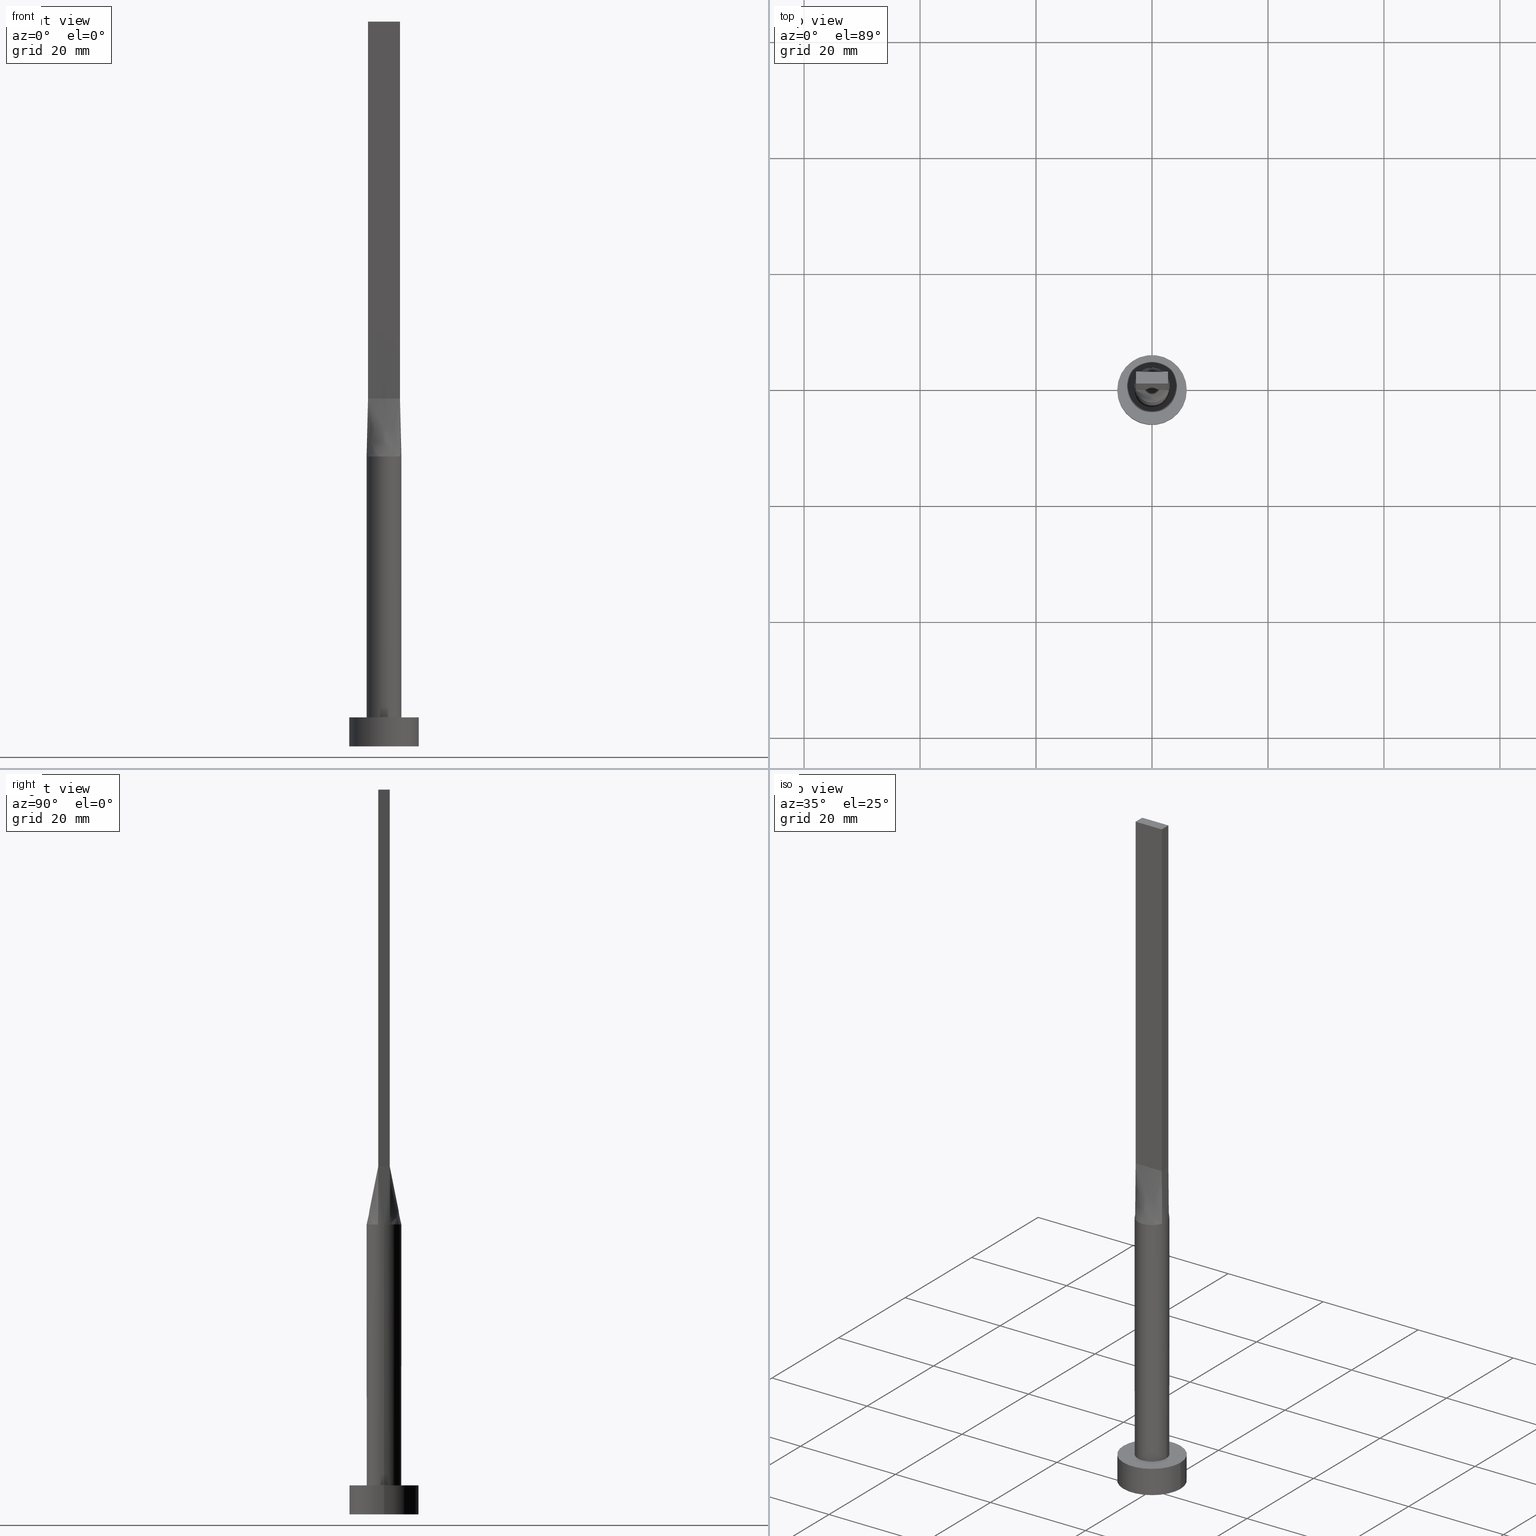
[diagram: canonical four-view strip — front | top / right | iso, engineering-drawing reading convention]
A machine part, canonical four-view strip (front | top / right | iso — engineering-drawing reading convention). The complete STEP part file that produces these views, byte-faithful:
ISO-10303-21;
HEADER;
FILE_DESCRIPTION (( 'STEP AP203' ),
    '1' );
FILE_NAME ('5a83.STEP',
    '2023-02-13T10:27:42',
    ( '' ),
    ( '' ),
    'SwSTEP 2.0',
    'SolidWorks 2019',
    '' );
FILE_SCHEMA (( 'CONFIG_CONTROL_DESIGN' ));
ENDSEC;

DATA;
#1 = ORIENTED_EDGE ( 'NONE', *, *, #524, .T. ) ;
#2 = PERSON_AND_ORGANIZATION ( #189, #142 ) ;
#3 = EDGE_CURVE ( 'NONE', #84, #350, #478, .T. ) ;
#4 = PLANE ( 'NONE',  #156 ) ;
#5 = DIRECTION ( 'NONE',  ( 1.000000000000000000, 0.000000000000000000, 0.000000000000000000 ) ) ;
#6 = CARTESIAN_POINT ( 'NONE',  ( 2.750000000000000000, -1.000000000000000000, 60.00000000000000000 ) ) ;
#7 = ORIENTED_EDGE ( 'NONE', *, *, #319, .F. ) ;
#8 = EDGE_LOOP ( 'NONE', ( #441, #580, #504, #439 ) ) ;
#9 = B_SPLINE_CURVE_WITH_KNOTS ( 'NONE', 3,
 ( #287, #246, #205, #36, #480, #471, #113, #155, #476, #28, #434, #428, #384, #323, #565, #73, #31, #200 ),
 .UNSPECIFIED., .F., .F.,
 ( 4, 2, 2, 2, 2, 2, 2, 2, 4 ),
 ( 0.000000000000000000, 0.1249999999999998890, 0.2499999999999997780, 0.3749999999999997780, 0.4999999999999997780, 0.6249999999999997780, 0.7499999999999997780, 0.8749999999999998890, 1.000000000000000000 ),
 .UNSPECIFIED. ) ;
#10 = VERTEX_POINT ( 'NONE', #162 ) ;
#11 = FACE_OUTER_BOUND ( 'NONE', #435, .T. ) ;
#12 = FACE_OUTER_BOUND ( 'NONE', #35, .T. ) ;
#13 = CARTESIAN_POINT ( 'NONE',  ( -0.4583333333333330373, -0.9999999999999995559, 60.00000000000000000 ) ) ;
#14 = CARTESIAN_POINT ( 'NONE',  ( 2.936168591633194769, -0.7040613060484341990, 49.99999999999999289 ) ) ;
#15 = LINE ( 'NONE', #190, #174 ) ;
#16 = CYLINDRICAL_SURFACE ( 'NONE', #294, 3.000000000000000444 ) ;
#17 = CARTESIAN_POINT ( 'NONE',  ( -2.520833333333332593, 1.000000000000000000, 60.00000000000000000 ) ) ;
#18 = CYLINDRICAL_SURFACE ( 'NONE', #100, 6.000000000000000888 ) ;
#19 = SECURITY_CLASSIFICATION ( '', '', #53 ) ;
#20 = FACE_OUTER_BOUND ( 'NONE', #543, .T. ) ;
#21 = CARTESIAN_POINT ( 'NONE',  ( -2.625980160873452540, -1.476334031700885507, 49.99999999999998579 ) ) ;
#22 = DIRECTION ( 'NONE',  ( -2.168404344971008868E-16, 1.000000000000000000, -0.000000000000000000 ) ) ;
#23 = EDGE_CURVE ( 'NONE', #433, #43, #74, .T. ) ;
#24 = CARTESIAN_POINT ( 'NONE',  ( 2.749999999999999556, 1.000000000000000000, 125.0000000000000000 ) ) ;
#25 = DIRECTION ( 'NONE',  ( 1.000000000000000000, 0.000000000000000000, 0.000000000000000000 ) ) ;
#26 = ADVANCED_BREP_SHAPE_REPRESENTATION ( '5a83', ( #447, #519 ), #304 ) ;
#27 = CC_DESIGN_DATE_AND_TIME_ASSIGNMENT ( #535, #489, ( #576 ) ) ;
#28 = CARTESIAN_POINT ( 'NONE',  ( -0.3502136323054376721, 2.999999999999999112, 50.00000000000001421 ) ) ;
#29 = CIRCLE ( 'NONE', #65, 6.000000000000000888 ) ;
#30 = DIRECTION ( 'NONE',  ( 1.000000000000000000, 0.000000000000000000, 0.000000000000000000 ) ) ;
#31 = CARTESIAN_POINT ( 'NONE',  ( -2.739088299662392423, 1.246032108968142316, 49.99999999999998579 ) ) ;
#32 = DIRECTION ( 'NONE',  ( 0.000000000000000000, 0.000000000000000000, 1.000000000000000000 ) ) ;
#33 = CARTESIAN_POINT ( 'NONE',  ( -2.749999999999999556, 1.000000000000000000, 60.00000000000000000 ) ) ;
#34 = EDGE_CURVE ( 'NONE', #10, #479, #526, .T. ) ;
#35 = EDGE_LOOP ( 'NONE', ( #178, #382, #395, #492, #220, #570 ) ) ;
#36 = CARTESIAN_POINT ( 'NONE',  ( 2.314486317179579977, 1.928337902455807384, 50.00000000000001421 ) ) ;
#37 = AXIS2_PLACEMENT_3D ( 'NONE', #577, #239, #70 ) ;
#38 = ORIENTED_EDGE ( 'NONE', *, *, #432, .F. ) ;
#39 = APPROVAL_STATUS ( 'not_yet_approved' ) ;
#40 = CARTESIAN_POINT ( 'NONE',  ( -0.9166666666666664076, -0.9999999999999995559, 60.00000000000000000 ) ) ;
#41 = ORIENTED_EDGE ( 'NONE', *, *, #390, .T. ) ;
#42 = CARTESIAN_POINT ( 'NONE',  ( 2.819380270465311700, -1.025229189260112417, 49.99999999999999289 ) ) ;
#43 = VERTEX_POINT ( 'NONE', #288 ) ;
#44 = LOCAL_TIME ( 11, 27, 42.00000000000000000, #77 ) ;
#45 = APPROVAL_DATE_TIME ( #445, #217 ) ;
#46 = CARTESIAN_POINT ( 'NONE',  ( -3.000000000000000444, 0.000000000000000000, 5.000000000000000000 ) ) ;
#47 = VERTEX_POINT ( 'NONE', #247 ) ;
#48 = ORIENTED_EDGE ( 'NONE', *, *, #468, .F. ) ;
#49 = ORIENTED_EDGE ( 'NONE', *, *, #90, .F. ) ;
#50 = EDGE_CURVE ( 'NONE', #436, #536, #429, .T. ) ;
#51 = ORIENTED_EDGE ( 'NONE', *, *, #400, .F. ) ;
#52 = CARTESIAN_POINT ( 'NONE',  ( 1.833333333333335258, 1.000000000000000000, 60.00000000000000000 ) ) ;
#53 = SECURITY_CLASSIFICATION_LEVEL ( 'unclassified' ) ;
#54 = VECTOR ( 'NONE', #336, 1000.000000000000000 ) ;
#55 = FACE_OUTER_BOUND ( 'NONE', #404, .T. ) ;
#56 = CARTESIAN_POINT ( 'NONE',  ( -0.2291666666666662966, -0.9999999999999995559, 60.00000000000000000 ) ) ;
#57 = DIRECTION ( 'NONE',  ( -0.006937837988376364777, -0.002522850177591326286, -0.9999727504442450510 ) ) ;
#58 = CARTESIAN_POINT ( 'NONE',  ( -1.145833333333329929, 1.000000000000000000, 60.00000000000000000 ) ) ;
#59 = PRODUCT_DEFINITION_SHAPE ( 'NONE', 'NONE',  #576 ) ;
#60 = DIRECTION ( 'NONE',  ( -0.006937837988376364777, 0.002522850177591326286, 0.9999727504442450510 ) ) ;
#61 = CARTESIAN_POINT ( 'NONE',  ( -2.819380270465311700, -1.025229189260111973, 49.99999999999999289 ) ) ;
#62 = DIRECTION ( 'NONE',  ( -1.000000000000000000, 0.000000000000000000, 0.000000000000000000 ) ) ;
#63 = ORIENTED_EDGE ( 'NONE', *, *, #263, .F. ) ;
#64 = CARTESIAN_POINT ( 'NONE',  ( 2.819380270465311700, 1.025229189260112639, 49.99999999999999289 ) ) ;
#65 = AXIS2_PLACEMENT_3D ( 'NONE', #370, #153, #394 ) ;
#66 = CARTESIAN_POINT ( 'NONE',  ( 2.749999999999999556, 1.000000000000000000, 125.0000000000000000 ) ) ;
#67 = LINE ( 'NONE', #238, #179 ) ;
#68 = EDGE_CURVE ( 'NONE', #495, #306, #481, .T. ) ;
#69 = CARTESIAN_POINT ( 'NONE',  ( -2.784690135232655628, 1.012614594630056430, 54.99999999999999289 ) ) ;
#70 = DIRECTION ( 'NONE',  ( 1.000000000000000000, -1.776356839400250465E-15, 0.000000000000000000 ) ) ;
#71 = AXIS2_PLACEMENT_3D ( 'NONE', #491, #499, #553 ) ;
#72 = VERTEX_POINT ( 'NONE', #552 ) ;
#73 = CARTESIAN_POINT ( 'NONE',  ( -2.625980160873452096, 1.476334031700886396, 50.00000000000000711 ) ) ;
#74 = LINE ( 'NONE', #379, #568 ) ;
#75 = DIRECTION ( 'NONE',  ( 1.000000000000000000, 0.000000000000000000, 0.000000000000000000 ) ) ;
#76 = ORIENTED_EDGE ( 'NONE', *, *, #531, .F. ) ;
#77 = COORDINATED_UNIVERSAL_TIME_OFFSET ( 1, 0, .AHEAD. ) ;
#78 = VECTOR ( 'NONE', #322, 1000.000000000000000 ) ;
#79 = VECTOR ( 'NONE', #359, 1000.000000000000000 ) ;
#80 = ADVANCED_FACE ( 'NONE', ( #226 ), #308, .F. ) ;
#81 = PERSON_AND_ORGANIZATION_ROLE ( 'creator' ) ;
#82 = CARTESIAN_POINT ( 'NONE',  ( -3.000000000000000444, -1.370010780910362699E-16, 49.99999999999998579 ) ) ;
#83 = ORIENTED_EDGE ( 'NONE', *, *, #353, .F. ) ;
#84 = VERTEX_POINT ( 'NONE', #510 ) ;
#85 = CARTESIAN_POINT ( 'NONE',  ( -2.750000000000000000, -0.3333333333333324822, 59.99999999999999289 ) ) ;
#86 = DIRECTION ( 'NONE',  ( 1.000000000000000000, 0.000000000000000000, -0.000000000000000000 ) ) ;
#87 = EDGE_LOOP ( 'NONE', ( #413, #537, #210, #158 ) ) ;
#88 = AXIS2_PLACEMENT_3D ( 'NONE', #424, #159, #25 ) ;
#89 = CARTESIAN_POINT ( 'NONE',  ( -2.750000000000000000, -0.9999999999999993339, 125.0000000000000000 ) ) ;
#90 = EDGE_CURVE ( 'NONE', #386, #479, #271, .T. ) ;
#91 = FACE_OUTER_BOUND ( 'NONE', #127, .T. ) ;
#92 = ORIENTED_EDGE ( 'NONE', *, *, #23, .T. ) ;
#93 = VECTOR ( 'NONE', #116, 1000.000000000000227 ) ;
#94 = CARTESIAN_POINT ( 'NONE',  ( -2.291666666666666519, -0.9999999999999995559, 60.00000000000000000 ) ) ;
#95 = CARTESIAN_POINT ( 'NONE',  ( -1.338960936578149408, 2.706038443291637119, 49.99999999999998579 ) ) ;
#96 = APPROVAL_STATUS ( 'not_yet_approved' ) ;
#97 = DIRECTION ( 'NONE',  ( -0.000000000000000000, -0.000000000000000000, -1.000000000000000000 ) ) ;
#98 = CARTESIAN_POINT ( 'NONE',  ( 1.627925520694712080, -2.539128397820341831, 50.00000000000000000 ) ) ;
#99 = CARTESIAN_POINT ( 'NONE',  ( 2.520833333333333037, 1.000000000000000000, 60.00000000000000000 ) ) ;
#100 = AXIS2_PLACEMENT_3D ( 'NONE', #414, #361, #314 ) ;
#101 = FACE_OUTER_BOUND ( 'NONE', #121, .T. ) ;
#102 = CARTESIAN_POINT ( 'NONE',  ( -1.833333333333330373, 1.000000000000000000, 60.00000000000000000 ) ) ;
#103 = CC_DESIGN_PERSON_AND_ORGANIZATION_ASSIGNMENT ( #216, #81, ( #576 ) ) ;
#104 = CARTESIAN_POINT ( 'NONE',  ( 0.000000000000000000, 0.000000000000000000, 125.0000000000000000 ) ) ;
#105 = FACE_OUTER_BOUND ( 'NONE', #8, .T. ) ;
#106 = CARTESIAN_POINT ( 'NONE',  ( 2.749999999999999556, 0.3333333333333328707, 59.99999999999999289 ) ) ;
#107 = DIRECTION ( 'NONE',  ( -1.000000000000000000, -2.168404344971008621E-16, 0.000000000000000000 ) ) ;
#108 = CARTESIAN_POINT ( 'NONE',  ( 0.000000000000000000, 0.000000000000000000, 5.000000000000000000 ) ) ;
#109 = AXIS2_PLACEMENT_3D ( 'NONE', #163, #380, #248 ) ;
#110 = EDGE_CURVE ( 'NONE', #306, #43, #506, .T. ) ;
#111 = CARTESIAN_POINT ( 'NONE',  ( 2.749999999999999556, 1.000000000000000000, 60.00000000000000000 ) ) ;
#112 = CARTESIAN_POINT ( 'NONE',  ( -2.936168591633194769, 0.7040613060484341990, 49.99999999999999289 ) ) ;
#113 = CARTESIAN_POINT ( 'NONE',  ( 1.338960936578149630, 2.706038443291637563, 50.00000000000000000 ) ) ;
#114 = APPROVAL_PERSON_ORGANIZATION ( #265, #241, #137 ) ;
#115 = CARTESIAN_POINT ( 'NONE',  ( -2.819429393986302657, 1.025247261300842760, 49.99999999999999289 ) ) ;
#116 = DIRECTION ( 'NONE',  ( -0.006937837988376408145, -0.002522850177591326286, 0.9999727504442450510 ) ) ;
#117 = PRODUCT_RELATED_PRODUCT_CATEGORY ( 'detail', '', ( #373 ) ) ;
#118 = CARTESIAN_POINT ( 'NONE',  ( -2.749999999999999556, 1.000000000000000000, 125.0000000000000000 ) ) ;
#119 = AXIS2_PLACEMENT_3D ( 'NONE', #574, #166, #529 ) ;
#120 =( NAMED_UNIT ( * ) SI_UNIT ( $, .STERADIAN. ) SOLID_ANGLE_UNIT ( ) );
#121 = EDGE_LOOP ( 'NONE', ( #1, #165, #240, #260 ) ) ;
#122 = APPROVAL_DATE_TIME ( #541, #440 ) ;
#123 = EDGE_CURVE ( 'NONE', #327, #436, #15, .T. ) ;
#124 = ORIENTED_EDGE ( 'NONE', *, *, #110, .T. ) ;
#125 = AXIS2_PLACEMENT_3D ( 'NONE', #412, #309, #371 ) ;
#126 = ORIENTED_EDGE ( 'NONE', *, *, #335, .F. ) ;
#127 = EDGE_LOOP ( 'NONE', ( #131, #38 ) ) ;
#128 = CARTESIAN_POINT ( 'NONE',  ( -3.000000000000000444, 0.3523499553598127276, 49.99999999999998579 ) ) ;
#129 = FACE_OUTER_BOUND ( 'NONE', #207, .T. ) ;
#130 = CARTESIAN_POINT ( 'NONE',  ( 0.4583333333333337034, -0.9999999999999995559, 60.00000000000000000 ) ) ;
#131 = ORIENTED_EDGE ( 'NONE', *, *, #50, .F. ) ;
#132 = LINE ( 'NONE', #496, #337 ) ;
#133 = ADVANCED_FACE ( 'NONE', ( #407 ), #266, .F. ) ;
#134 = CARTESIAN_POINT ( 'NONE',  ( 6.000000000000000888, 7.347880794884120722E-16, 5.000000000000000000 ) ) ;
#135 = EDGE_LOOP ( 'NONE', ( #83, #444, #259, #493 ) ) ;
#136 = VECTOR ( 'NONE', #332, 1000.000000000000000 ) ;
#137 = APPROVAL_ROLE ( '' ) ;
#138 = CARTESIAN_POINT ( 'NONE',  ( 1.338960936578149630, 2.706038443291637563, 50.00000000000000000 ) ) ;
#139 = DATE_AND_TIME ( #558, #575 ) ;
#140 = ADVANCED_FACE ( 'NONE', ( #144 ), #234, .T. ) ;
#141 = CARTESIAN_POINT ( 'NONE',  ( -1.627925520694712747, 2.539128397820341831, 50.00000000000000000 ) ) ;
#142 = ORGANIZATION ( 'NEUR�EN�', 'NEUR�EN�', '' ) ;
#143 = DIRECTION ( 'NONE',  ( -0.000000000000000000, -0.000000000000000000, -1.000000000000000000 ) ) ;
#144 = FACE_OUTER_BOUND ( 'NONE', #212, .T. ) ;
#145 = DIRECTION ( 'NONE',  ( -0.000000000000000000, -0.000000000000000000, -1.000000000000000000 ) ) ;
#146 = CARTESIAN_POINT ( 'NONE',  ( -2.115507543051069916, 2.149870311632977593, 49.99999999999999289 ) ) ;
#147 = AXIS2_PLACEMENT_3D ( 'NONE', #517, #107, #279 ) ;
#148 = DATE_AND_TIME ( #358, #164 ) ;
#149 = CARTESIAN_POINT ( 'NONE',  ( 2.750000000000000000, -0.6666666666666669627, 59.99999999999999289 ) ) ;
#150 = CARTESIAN_POINT ( 'NONE',  ( 3.000000000000000444, 3.673940397442059868E-16, 49.99999999999999289 ) ) ;
#151 = CARTESIAN_POINT ( 'NONE',  ( -1.145833333333333037, -0.9999999999999995559, 60.00000000000000000 ) ) ;
#152 = EDGE_CURVE ( 'NONE', #352, #84, #196, .T. ) ;
#153 = DIRECTION ( 'NONE',  ( 0.000000000000000000, 0.000000000000000000, 1.000000000000000000 ) ) ;
#154 = LINE ( 'NONE', #281, #521 ) ;
#155 = CARTESIAN_POINT ( 'NONE',  ( 0.6998073349918605413, 2.936959335800557014, 49.99999999999998579 ) ) ;
#156 = AXIS2_PLACEMENT_3D ( 'NONE', #214, #542, #86 ) ;
#157 = FACE_OUTER_BOUND ( 'NONE', #347, .T. ) ;
#158 = ORIENTED_EDGE ( 'NONE', *, *, #547, .T. ) ;
#159 = DIRECTION ( 'NONE',  ( 0.000000000000000000, 0.000000000000000000, 1.000000000000000000 ) ) ;
#160 = CARTESIAN_POINT ( 'NONE',  ( -2.750000000000000000, -0.9999999999999993339, 60.00000000000000000 ) ) ;
#161 = CC_DESIGN_PERSON_AND_ORGANIZATION_ASSIGNMENT ( #176, #453, ( #474 ) ) ;
#162 = CARTESIAN_POINT ( 'NONE',  ( 2.819412401233197141, 1.025240989080170362, 49.99999999999999289 ) ) ;
#163 = CARTESIAN_POINT ( 'NONE',  ( -2.750000000000000000, -0.9999999999999993339, 125.0000000000000000 ) ) ;
#164 = LOCAL_TIME ( 11, 27, 42.00000000000000000, #227 ) ;
#165 = ORIENTED_EDGE ( 'NONE', *, *, #335, .T. ) ;
#166 = DIRECTION ( 'NONE',  ( 0.000000000000000000, 0.000000000000000000, 1.000000000000000000 ) ) ;
#167 = CARTESIAN_POINT ( 'NONE',  ( 0.000000000000000000, 0.000000000000000000, 0.000000000000000000 ) ) ;
#168 = ADVANCED_FACE ( 'NONE', ( #20 ), #321, .F. ) ;
#169 = CARTESIAN_POINT ( 'NONE',  ( 0.9166666666666669627, -0.9999999999999995559, 60.00000000000000000 ) ) ;
#170 = PERSON_AND_ORGANIZATION ( #189, #142 ) ;
#171 = AXIS2_PLACEMENT_3D ( 'NONE', #302, #270, #237 ) ;
#172 = ORIENTED_EDGE ( 'NONE', *, *, #497, .F. ) ;
#173 = PERSON_AND_ORGANIZATION_ROLE ( 'creator' ) ;
#174 = VECTOR ( 'NONE', #423, 1000.000000000000000 ) ;
#175 = FACE_OUTER_BOUND ( 'NONE', #135, .T. ) ;
#176 = PERSON_AND_ORGANIZATION ( #189, #142 ) ;
#177 = CARTESIAN_POINT ( 'NONE',  ( -2.749999999999999556, 1.000000000000000000, 60.00000000000000000 ) ) ;
#178 = ORIENTED_EDGE ( 'NONE', *, *, #152, .F. ) ;
#179 = VECTOR ( 'NONE', #571, 1000.000000000000000 ) ;
#180 = CARTESIAN_POINT ( 'NONE',  ( 2.749999999999999556, 1.000000000000000000, 60.00000000000000000 ) ) ;
#181 = LINE ( 'NONE', #455, #78 ) ;
#182 = CARTESIAN_POINT ( 'NONE',  ( 0.000000000000000000, 0.000000000000000000, 49.99999999999999289 ) ) ;
#183 = CARTESIAN_POINT ( 'NONE',  ( 0.3502136323054376721, 3.000000000000000444, 50.00000000000000000 ) ) ;
#184 = CC_DESIGN_PERSON_AND_ORGANIZATION_ASSIGNMENT ( #170, #389, ( #373 ) ) ;
#185 = ORIENTED_EDGE ( 'NONE', *, *, #514, .T. ) ;
#186 = CARTESIAN_POINT ( 'NONE',  ( -2.749999999999999556, 1.000000000000000000, 60.00000000000000000 ) ) ;
#187 = CARTESIAN_POINT ( 'NONE',  ( 2.115507543051069916, 2.149870311632976705, 50.00000000000000711 ) ) ;
#188 = CARTESIAN_POINT ( 'NONE',  ( 3.000000000000000444, -0.3523499553598126721, 49.99999999999998579 ) ) ;
#189 = PERSON ( 'NEUR�EN�', 'NEUR�EN�', 'NEUR�EN�', ('NEUR�EN�'), ('NEUR�EN�'), ('NEUR�EN�') ) ;
#190 = CARTESIAN_POINT ( 'NONE',  ( -6.000000000000000888, 0.000000000000000000, 5.000000000000000000 ) ) ;
#191 = CARTESIAN_POINT ( 'NONE',  ( 2.291666666666666519, -1.000000000000000000, 60.00000000000000000 ) ) ;
#192 = DIRECTION ( 'NONE',  ( -0.000000000000000000, -0.000000000000000000, -1.000000000000000000 ) ) ;
#193 = ORIENTED_EDGE ( 'NONE', *, *, #68, .F. ) ;
#194 = ADVANCED_FACE ( 'NONE', ( #11 ), #516, .T. ) ;
#195 = LINE ( 'NONE', #177, #469 ) ;
#196 = LINE ( 'NONE', #150, #578 ) ;
#197 = CARTESIAN_POINT ( 'NONE',  ( 0.000000000000000000, 0.000000000000000000, 5.000000000000000000 ) ) ;
#198 = DIRECTION ( 'NONE',  ( 0.000000000000000000, 0.000000000000000000, 1.000000000000000000 ) ) ;
#199 = ORIENTED_EDGE ( 'NONE', *, *, #514, .F. ) ;
#200 = CARTESIAN_POINT ( 'NONE',  ( -2.819429393986302657, 1.025247261300842760, 49.99999999999999289 ) ) ;
#201 = EDGE_CURVE ( 'NONE', #43, #485, #459, .T. ) ;
#202 = DIRECTION ( 'NONE',  ( -1.000000000000000000, 0.000000000000000000, 0.000000000000000000 ) ) ;
#203 = ORIENTED_EDGE ( 'NONE', *, *, #319, .T. ) ;
#204 = LINE ( 'NONE', #573, #54 ) ;
#205 = CARTESIAN_POINT ( 'NONE',  ( 2.625980160873452540, 1.476334031700886618, 50.00000000000000711 ) ) ;
#206 = ORIENTED_EDGE ( 'NONE', *, *, #507, .T. ) ;
#207 = EDGE_LOOP ( 'NONE', ( #206, #486 ) ) ;
#208 = EDGE_CURVE ( 'NONE', #356, #479, #154, .T. ) ;
#209 = COORDINATED_UNIVERSAL_TIME_OFFSET ( 1, 0, .AHEAD. ) ;
#210 = ORIENTED_EDGE ( 'NONE', *, *, #569, .T. ) ;
#211 = MECHANICAL_CONTEXT ( 'NONE', #310, 'mechanical' ) ;
#212 = EDGE_LOOP ( 'NONE', ( #51, #296, #300, #500, #48, #391 ) ) ;
#213 = LINE ( 'NONE', #89, #236 ) ;
#214 = CARTESIAN_POINT ( 'NONE',  ( 0.000000000000000000, 0.000000000000000000, 5.000000000000000000 ) ) ;
#215 = APPROVAL_PERSON_ORGANIZATION ( #253, #440, #392 ) ;
#216 = PERSON_AND_ORGANIZATION ( #189, #142 ) ;
#217 = APPROVAL ( #343, 'NEUR�EN�' ) ;
#218 = CARTESIAN_POINT ( 'NONE',  ( 2.819380270465311700, -1.025229189260113083, 49.99999999999999289 ) ) ;
#219 = ORIENTED_EDGE ( 'NONE', *, *, #225, .F. ) ;
#220 = ORIENTED_EDGE ( 'NONE', *, *, #475, .T. ) ;
#221 = CARTESIAN_POINT ( 'NONE',  ( -0.4583333333333299286, 1.000000000000000000, 59.99999999999999289 ) ) ;
#222 = LINE ( 'NONE', #410, #328 ) ;
#223 = AXIS2_PLACEMENT_3D ( 'NONE', #197, #331, #375 ) ;
#224 = APPROVAL_DATE_TIME ( #139, #241 ) ;
#225 = EDGE_CURVE ( 'NONE', #495, #433, #222, .T. ) ;
#226 = FACE_OUTER_BOUND ( 'NONE', #490, .T. ) ;
#227 = COORDINATED_UNIVERSAL_TIME_OFFSET ( 1, 0, .AHEAD. ) ;
#228 = CARTESIAN_POINT ( 'NONE',  ( 6.000000000000000888, 7.347880794884120722E-16, 5.000000000000000000 ) ) ;
#229 = CARTESIAN_POINT ( 'NONE',  ( 0.3502136323054372835, -3.000000000000000444, 49.99999999999998579 ) ) ;
#230 = DIRECTION ( 'NONE',  ( -0.000000000000000000, -0.000000000000000000, -1.000000000000000000 ) ) ;
#231 = CARTESIAN_POINT ( 'NONE',  ( -2.750000000000000000, -0.9999999999999993339, 60.00000000000000000 ) ) ;
#232 = SHAPE_DEFINITION_REPRESENTATION ( #59, #26 ) ;
#233 = CARTESIAN_POINT ( 'NONE',  ( 2.520833333333333037, -1.000000000000000000, 60.00000000000000000 ) ) ;
#234 = CYLINDRICAL_SURFACE ( 'NONE', #396, 3.000000000000000444 ) ;
#235 = ADVANCED_FACE ( 'NONE', ( #12 ), #16, .T. ) ;
#236 = VECTOR ( 'NONE', #442, 1000.000000000000000 ) ;
#237 = DIRECTION ( 'NONE',  ( 1.000000000000000000, 0.000000000000000000, -0.000000000000000000 ) ) ;
#238 = CARTESIAN_POINT ( 'NONE',  ( 2.750000000000000000, -0.9999999999999997780, 125.0000000000000000 ) ) ;
#239 = DIRECTION ( 'NONE',  ( 0.000000000000000000, 0.000000000000000000, 1.000000000000000000 ) ) ;
#240 = ORIENTED_EDGE ( 'NONE', *, *, #257, .F. ) ;
#241 = APPROVAL ( #96, 'NEUR�EN�' ) ;
#242 = DIRECTION ( 'NONE',  ( 1.000000000000000000, 0.000000000000000000, 0.000000000000000000 ) ) ;
#243 = CIRCLE ( 'NONE', #88, 3.000000000000000444 ) ;
#244 = ORIENTED_EDGE ( 'NONE', *, *, #90, .T. ) ;
#245 = AXIS2_PLACEMENT_3D ( 'NONE', #362, #548, #555 ) ;
#246 = CARTESIAN_POINT ( 'NONE',  ( 2.739088299662392867, 1.246032108968142538, 50.00000000000000711 ) ) ;
#247 = CARTESIAN_POINT ( 'NONE',  ( 2.750000000000000000, -0.9999999999999997780, 125.0000000000000000 ) ) ;
#248 = DIRECTION ( 'NONE',  ( -1.000000000000000000, 7.885106708985487801E-17, 0.000000000000000000 ) ) ;
#249 = ADVANCED_FACE ( 'NONE', ( #105 ), #275, .T. ) ;
#250 = CALENDAR_DATE ( 2023, 13, 2 ) ;
#251 = ORIENTED_EDGE ( 'NONE', *, *, #3, .F. ) ;
#252 = ORIENTED_EDGE ( 'NONE', *, *, #110, .F. ) ;
#253 = PERSON_AND_ORGANIZATION ( #189, #142 ) ;
#254 = APPLICATION_CONTEXT ( 'configuration controlled 3d designs of mechanical parts and assemblies' ) ;
#255 = LINE ( 'NONE', #228, #454 ) ;
#256 = DESIGN_CONTEXT ( 'detailed design', #254, 'design' ) ;
#257 = EDGE_CURVE ( 'NONE', #43, #356, #324, .T. ) ;
#258 = CARTESIAN_POINT ( 'NONE',  ( 2.750000000000000000, -0.9999999999999997780, 60.00000000000000000 ) ) ;
#259 = ORIENTED_EDGE ( 'NONE', *, *, #123, .T. ) ;
#260 = ORIENTED_EDGE ( 'NONE', *, *, #201, .T. ) ;
#261 =( LENGTH_UNIT ( ) NAMED_UNIT ( * ) SI_UNIT ( .MILLI., .METRE. ) );
#262 = VERTEX_POINT ( 'NONE', #115 ) ;
#263 = EDGE_CURVE ( 'NONE', #386, #495, #181, .T. ) ;
#264 = CARTESIAN_POINT ( 'NONE',  ( 1.145833333333336368, 1.000000000000000000, 60.00000000000000000 ) ) ;
#265 = PERSON_AND_ORGANIZATION ( #189, #142 ) ;
#266 = PLANE ( 'NONE',  #245 ) ;
#267 = CARTESIAN_POINT ( 'NONE',  ( 2.314486317179579977, 1.928337902455807384, 50.00000000000001421 ) ) ;
#268 = VECTOR ( 'NONE', #60, 1000.000000000000227 ) ;
#269 = B_SPLINE_SURFACE_WITH_KNOTS ( 'NONE', 3, 1, ( 
 ( #218, #6 ),
 ( #14, #149 ),
 ( #188, #512 ),
 ( #351, #106 ),
 ( #277, #466 ),
 ( #64, #349 ) ),
 .UNSPECIFIED., .F., .F., .F.,
 ( 4, 2, 4 ),
 ( 2, 2 ),
 ( 0.000000000000000000, 0.5000000000000000000, 1.000000000000000000 ),
 ( 0.000000000000000000, 1.000000000000000000 ),
 .UNSPECIFIED. ) ;
#270 = DIRECTION ( 'NONE',  ( 0.000000000000000000, 0.000000000000000000, 1.000000000000000000 ) ) ;
#271 = LINE ( 'NONE', #66, #503 ) ;
#272 = CARTESIAN_POINT ( 'NONE',  ( -2.625980160873452096, 1.476334031700886396, 50.00000000000000711 ) ) ;
#273 = DIRECTION ( 'NONE',  ( 0.000000000000000000, 0.000000000000000000, 1.000000000000000000 ) ) ;
#274 = CARTESIAN_POINT ( 'NONE',  ( -2.115507543051069472, -2.149870311632975373, 49.99999999999999289 ) ) ;
#275 = CYLINDRICAL_SURFACE ( 'NONE', #446, 6.000000000000000888 ) ;
#276 = ORIENTED_EDGE ( 'NONE', *, *, #225, .T. ) ;
#277 = CARTESIAN_POINT ( 'NONE',  ( 2.936168591633195657, 0.7040613060484338659, 50.00000000000000000 ) ) ;
#278 = ADVANCED_FACE ( 'NONE', ( #101 ), #313, .T. ) ;
#279 = DIRECTION ( 'NONE',  ( 2.168404344971008621E-16, -1.000000000000000000, 0.000000000000000000 ) ) ;
#280 = CARTESIAN_POINT ( 'NONE',  ( -2.314486317179578645, -1.928337902455806496, 49.99999999999998579 ) ) ;
#281 = CARTESIAN_POINT ( 'NONE',  ( 2.749999999999999556, 1.000000000000000000, 60.00000000000000000 ) ) ;
#282 = AXIS2_PLACEMENT_3D ( 'NONE', #520, #522, #283 ) ;
#283 = DIRECTION ( 'NONE',  ( 1.000000000000000000, 0.000000000000000000, 0.000000000000000000 ) ) ;
#284 = DIRECTION ( 'NONE',  ( 1.000000000000000000, 0.000000000000000000, 0.000000000000000000 ) ) ;
#285 = ADVANCED_FACE ( 'NONE', ( #419 ), #515, .T. ) ;
#286 = CARTESIAN_POINT ( 'NONE',  ( -2.749999999999999556, 0.6666666666666669627, 59.99999999999999289 ) ) ;
#287 = CARTESIAN_POINT ( 'NONE',  ( 2.819412401233197141, 1.025240989080170362, 49.99999999999999289 ) ) ;
#288 = CARTESIAN_POINT ( 'NONE',  ( -2.750000000000000000, -0.9999999999999993339, 60.00000000000000000 ) ) ;
#289 = PLANE ( 'NONE',  #109 ) ;
#290 = ADVANCED_FACE ( 'NONE', ( #559, #129 ), #4, .T. ) ;
#291 = CARTESIAN_POINT ( 'NONE',  ( 2.784690135232655628, 1.012614594630056430, 54.99999999999999289 ) ) ;
#292 = EDGE_LOOP ( 'NONE', ( #92, #252, #193, #276 ) ) ;
#293 = DIRECTION ( 'NONE',  ( 0.000000000000000000, 0.000000000000000000, 1.000000000000000000 ) ) ;
#294 = AXIS2_PLACEMENT_3D ( 'NONE', #182, #145, #62 ) ;
#295 = ORIENTED_EDGE ( 'NONE', *, *, #201, .F. ) ;
#296 = ORIENTED_EDGE ( 'NONE', *, *, #152, .T. ) ;
#297 = EDGE_CURVE ( 'NONE', #341, #327, #29, .T. ) ;
#298 = CARTESIAN_POINT ( 'NONE',  ( -3.000000000000000444, -0.3523499553598117839, 49.99999999999998579 ) ) ;
#299 = PLANE ( 'NONE',  #171 ) ;
#300 = ORIENTED_EDGE ( 'NONE', *, *, #3, .T. ) ;
#301 = CARTESIAN_POINT ( 'NONE',  ( -2.750000000000000000, -0.6666666666666657415, 59.99999999999999289 ) ) ;
#302 = CARTESIAN_POINT ( 'NONE',  ( 0.000000000000000000, 0.000000000000000000, 0.000000000000000000 ) ) ;
#303 = ORIENTED_EDGE ( 'NONE', *, *, #305, .T. ) ;
#304 =( GEOMETRIC_REPRESENTATION_CONTEXT ( 3 ) GLOBAL_UNCERTAINTY_ASSIGNED_CONTEXT ( ( #402 ) ) GLOBAL_UNIT_ASSIGNED_CONTEXT ( ( #261, #388, #120 ) ) REPRESENTATION_CONTEXT ( 'NONE', 'WORKASPACE' ) );
#305 = EDGE_CURVE ( 'NONE', #340, #485, #498, .T. ) ;
#306 = VERTEX_POINT ( 'NONE', #563 ) ;
#307 = CARTESIAN_POINT ( 'NONE',  ( 0.4583333333333366455, 1.000000000000000000, 60.00000000000000000 ) ) ;
#308 = PLANE ( 'NONE',  #125 ) ;
#309 = DIRECTION ( 'NONE',  ( 0.000000000000000000, -1.000000000000000000, 0.000000000000000000 ) ) ;
#310 = APPLICATION_CONTEXT ( 'configuration controlled 3d designs of mechanical parts and assemblies' ) ;
#311 = CARTESIAN_POINT ( 'NONE',  ( -1.604166666666663410, 1.000000000000000000, 60.00000000000000000 ) ) ;
#312 = APPROVAL_PERSON_ORGANIZATION ( #339, #217, #342 ) ;
#313 = B_SPLINE_SURFACE_WITH_KNOTS ( 'NONE', 3, 1, ( 
 ( #61, #231 ),
 ( #556, #409 ),
 ( #21, #94 ),
 ( #280, #316 ),
 ( #274, #317 ),
 ( #513, #151 ),
 ( #464, #40 ),
 ( #346, #13 ),
 ( #477, #56 ),
 ( #229, #369 ),
 ( #562, #130 ),
 ( #418, #169 ),
 ( #98, #372 ),
 ( #450, #383 ),
 ( #333, #457 ),
 ( #320, #191 ),
 ( #448, #233 ),
 ( #42, #258 ) ),
 .UNSPECIFIED., .F., .F., .F.,
 ( 4, 2, 2, 2, 2, 2, 2, 2, 4 ),
 ( 2, 2 ),
 ( 0.000000000000000000, 0.1250000000000000000, 0.2500000000000000000, 0.3750000000000000000, 0.5000000000000000000, 0.6250000000000000000, 0.7500000000000000000, 0.8750000000000000000, 1.000000000000000000 ),
 ( 0.000000000000000000, 1.000000000000000000 ),
 .UNSPECIFIED. ) ;
#314 = DIRECTION ( 'NONE',  ( -1.000000000000000000, 0.000000000000000000, 0.000000000000000000 ) ) ;
#315 = AXIS2_PLACEMENT_3D ( 'NONE', #426, #32, #30 ) ;
#316 = CARTESIAN_POINT ( 'NONE',  ( -1.833333333333333037, -0.9999999999999995559, 60.00000000000000000 ) ) ;
#317 = CARTESIAN_POINT ( 'NONE',  ( -1.604166666666666519, -0.9999999999999995559, 60.00000000000000000 ) ) ;
#318 = CARTESIAN_POINT ( 'NONE',  ( 2.739088299662392867, 1.246032108968142538, 50.00000000000000711 ) ) ;
#319 = EDGE_CURVE ( 'NONE', #479, #433, #195, .T. ) ;
#320 = CARTESIAN_POINT ( 'NONE',  ( 2.625980160873452984, -1.476334031700886618, 50.00000000000000711 ) ) ;
#321 = PLANE ( 'NONE',  #147 ) ;
#322 = DIRECTION ( 'NONE',  ( -1.000000000000000000, 0.000000000000000000, 0.000000000000000000 ) ) ;
#323 = CARTESIAN_POINT ( 'NONE',  ( -2.115507543051069916, 2.149870311632977593, 49.99999999999999289 ) ) ;
#324 = LINE ( 'NONE', #160, #136 ) ;
#325 = CARTESIAN_POINT ( 'NONE',  ( 6.000000000000000888, 7.347880794884120722E-16, 0.000000000000000000 ) ) ;
#326 = CC_DESIGN_PERSON_AND_ORGANIZATION_ASSIGNMENT ( #2, #173, ( #474 ) ) ;
#327 = VERTEX_POINT ( 'NONE', #422 ) ;
#328 = VECTOR ( 'NONE', #363, 1000.000000000000000 ) ;
#329 = CARTESIAN_POINT ( 'NONE',  ( -2.749999999999999556, 1.000000000000000000, 60.00000000000000000 ) ) ;
#330 = ORIENTED_EDGE ( 'NONE', *, *, #257, .T. ) ;
#331 = DIRECTION ( 'NONE',  ( 0.000000000000000000, 0.000000000000000000, 1.000000000000000000 ) ) ;
#332 = DIRECTION ( 'NONE',  ( 1.000000000000000000, -7.885106708985487801E-17, 0.000000000000000000 ) ) ;
#333 = CARTESIAN_POINT ( 'NONE',  ( 2.314486317179579533, -1.928337902455807606, 50.00000000000000000 ) ) ;
#334 = DIRECTION ( 'NONE',  ( -2.168404344971009854E-16, -1.000000000000000000, 0.000000000000000000 ) ) ;
#335 = EDGE_CURVE ( 'NONE', #72, #356, #494, .T. ) ;
#336 = DIRECTION ( 'NONE',  ( -0.000000000000000000, -0.000000000000000000, -1.000000000000000000 ) ) ;
#337 = VECTOR ( 'NONE', #538, 1000.000000000000000 ) ;
#338 = VECTOR ( 'NONE', #192, 1000.000000000000000 ) ;
#339 = PERSON_AND_ORGANIZATION ( #189, #142 ) ;
#340 = VERTEX_POINT ( 'NONE', #82 ) ;
#341 = VERTEX_POINT ( 'NONE', #134 ) ;
#342 = APPROVAL_ROLE ( '' ) ;
#343 = APPROVAL_STATUS ( 'not_yet_approved' ) ;
#344 = CIRCLE ( 'NONE', #544, 3.000000000000000444 ) ;
#345 = CC_DESIGN_PERSON_AND_ORGANIZATION_ASSIGNMENT ( #461, #551, ( #19 ) ) ;
#346 = CARTESIAN_POINT ( 'NONE',  ( -0.6998073349918614294, -2.936959335800558346, 49.99999999999998579 ) ) ;
#347 = EDGE_LOOP ( 'NONE', ( #330, #199, #430, #124 ) ) ;
#348 = CARTESIAN_POINT ( 'NONE',  ( -2.819380270465311700, -1.025229189260112195, 49.99999999999999289 ) ) ;
#349 = CARTESIAN_POINT ( 'NONE',  ( 2.749999999999999556, 1.000000000000000000, 60.00000000000000000 ) ) ;
#350 = VERTEX_POINT ( 'NONE', #46 ) ;
#351 = CARTESIAN_POINT ( 'NONE',  ( 3.000000000000000444, 0.3523499553598119505, 49.99999999999998579 ) ) ;
#352 = VERTEX_POINT ( 'NONE', #398 ) ;
#353 = EDGE_CURVE ( 'NONE', #341, #536, #255, .T. ) ;
#354 = CIRCLE ( 'NONE', #37, 3.000000000000000444 ) ;
#355 = ORIENTED_EDGE ( 'NONE', *, *, #497, .T. ) ;
#356 = VERTEX_POINT ( 'NONE', #443 ) ;
#357 = CARTESIAN_POINT ( 'NONE',  ( -0.6998073349918608743, 2.936959335800557014, 50.00000000000000000 ) ) ;
#358 = CALENDAR_DATE ( 2023, 13, 2 ) ;
#359 = DIRECTION ( 'NONE',  ( -2.168404344971009854E-16, -1.000000000000000000, 0.000000000000000000 ) ) ;
#360 = CARTESIAN_POINT ( 'NONE',  ( 0.9166666666666699603, 1.000000000000000000, 60.00000000000000000 ) ) ;
#361 = DIRECTION ( 'NONE',  ( -0.000000000000000000, -0.000000000000000000, -1.000000000000000000 ) ) ;
#362 = CARTESIAN_POINT ( 'NONE',  ( -2.749999999999999556, 1.000000000000000000, 125.0000000000000000 ) ) ;
#363 = DIRECTION ( 'NONE',  ( -0.000000000000000000, -0.000000000000000000, -1.000000000000000000 ) ) ;
#364 = ADVANCED_FACE ( 'NONE', ( #175 ), #18, .T. ) ;
#365 = CC_DESIGN_APPROVAL ( #440, ( #474 ) ) ;
#366 = DIRECTION ( 'NONE',  ( 1.000000000000000000, 0.000000000000000000, -0.000000000000000000 ) ) ;
#367 = CARTESIAN_POINT ( 'NONE',  ( 0.000000000000000000, 0.000000000000000000, 49.99999999999999289 ) ) ;
#368 = CLOSED_SHELL ( 'NONE', ( #140, #249, #364, #290, #381, #235, #278, #374, #540, #194, #80, #133, #484, #168, #285 ) ) ;
#369 = CARTESIAN_POINT ( 'NONE',  ( 0.2291666666666670460, -0.9999999999999995559, 60.00000000000000000 ) ) ;
#370 = CARTESIAN_POINT ( 'NONE',  ( 0.000000000000000000, 0.000000000000000000, 5.000000000000000000 ) ) ;
#371 = DIRECTION ( 'NONE',  ( 0.000000000000000000, -0.000000000000000000, -1.000000000000000000 ) ) ;
#372 = CARTESIAN_POINT ( 'NONE',  ( 1.145833333333333703, -0.9999999999999995559, 60.00000000000000000 ) ) ;
#373 = PRODUCT ( '5a83', '5a83', '', ( #211 ) ) ;
#374 = ADVANCED_FACE ( 'NONE', ( #55 ), #269, .T. ) ;
#375 = DIRECTION ( 'NONE',  ( 1.000000000000000000, 0.000000000000000000, 0.000000000000000000 ) ) ;
#376 = CIRCLE ( 'NONE', #223, 3.000000000000000444 ) ;
#377 = CARTESIAN_POINT ( 'NONE',  ( -2.819413526938078896, -1.025241406939938926, 49.99999999999999289 ) ) ;
#378 = DIRECTION ( 'NONE',  ( 0.000000000000000000, 0.000000000000000000, 1.000000000000000000 ) ) ;
#379 = CARTESIAN_POINT ( 'NONE',  ( -2.749999999999999556, 1.000000000000000000, 60.00000000000000000 ) ) ;
#380 = DIRECTION ( 'NONE',  ( 7.885106708985487801E-17, 1.000000000000000000, -0.000000000000000000 ) ) ;
#381 = ADVANCED_FACE ( 'NONE', ( #91 ), #299, .F. ) ;
#382 = ORIENTED_EDGE ( 'NONE', *, *, #390, .F. ) ;
#383 = CARTESIAN_POINT ( 'NONE',  ( 1.604166666666666963, -0.9999999999999997780, 60.00000000000000000 ) ) ;
#384 = CARTESIAN_POINT ( 'NONE',  ( -1.627925520694712747, 2.539128397820341831, 50.00000000000000000 ) ) ;
#385 = CC_DESIGN_APPROVAL ( #241, ( #19 ) ) ;
#386 = VERTEX_POINT ( 'NONE', #24 ) ;
#387 = VECTOR ( 'NONE', #57, 1000.000000000000227 ) ;
#388 =( NAMED_UNIT ( * ) PLANE_ANGLE_UNIT ( ) SI_UNIT ( $, .RADIAN. ) );
#389 = PERSON_AND_ORGANIZATION_ROLE ( 'design_owner' ) ;
#390 = EDGE_CURVE ( 'NONE', #72, #352, #354, .T. ) ;
#391 = ORIENTED_EDGE ( 'NONE', *, *, #415, .F. ) ;
#392 = APPROVAL_ROLE ( '' ) ;
#393 = AXIS2_PLACEMENT_3D ( 'NONE', #528, #378, #75 ) ;
#394 = DIRECTION ( 'NONE',  ( 1.000000000000000000, 0.000000000000000000, 0.000000000000000000 ) ) ;
#395 = ORIENTED_EDGE ( 'NONE', *, *, #524, .F. ) ;
#396 = AXIS2_PLACEMENT_3D ( 'NONE', #367, #420, #560 ) ;
#397 = CARTESIAN_POINT ( 'NONE',  ( -2.749999999999999556, 0.3333333333333338144, 59.99999999999999289 ) ) ;
#398 = CARTESIAN_POINT ( 'NONE',  ( 3.000000000000000444, 7.514166843208513631E-18, 49.99999999999998579 ) ) ;
#399 = ORIENTED_EDGE ( 'NONE', *, *, #400, .T. ) ;
#400 = EDGE_CURVE ( 'NONE', #352, #10, #344, .T. ) ;
#401 = APPLICATION_PROTOCOL_DEFINITION ( 'international standard', 'config_control_design', 1994, #310 ) ;
#402 = UNCERTAINTY_MEASURE_WITH_UNIT (LENGTH_MEASURE( 1.000000000000000082E-05 ), #261, 'distance_accuracy_value', 'NONE');
#403 = EDGE_LOOP ( 'NONE', ( #483, #303, #295, #488, #172 ) ) ;
#404 = EDGE_LOOP ( 'NONE', ( #41, #399, #572, #532, #126 ) ) ;
#405 = COORDINATED_UNIVERSAL_TIME_OFFSET ( 1, 0, .AHEAD. ) ;
#406 = LOCAL_TIME ( 11, 27, 42.00000000000000000, #581 ) ;
#407 = FACE_OUTER_BOUND ( 'NONE', #292, .T. ) ;
#408 = ORIENTED_EDGE ( 'NONE', *, *, #415, .T. ) ;
#409 = CARTESIAN_POINT ( 'NONE',  ( -2.520833333333333037, -0.9999999999999993339, 60.00000000000000000 ) ) ;
#410 = CARTESIAN_POINT ( 'NONE',  ( -2.749999999999999556, 1.000000000000000000, 125.0000000000000000 ) ) ;
#411 = CARTESIAN_POINT ( 'NONE',  ( 0.6998073349918605413, 2.936959335800557014, 49.99999999999998579 ) ) ;
#412 = CARTESIAN_POINT ( 'NONE',  ( 2.749999999999999556, 1.000000000000000000, 125.0000000000000000 ) ) ;
#413 = ORIENTED_EDGE ( 'NONE', *, *, #263, .T. ) ;
#414 = CARTESIAN_POINT ( 'NONE',  ( 0.000000000000000000, 0.000000000000000000, 5.000000000000000000 ) ) ;
#415 = EDGE_CURVE ( 'NONE', #10, #262, #9, .T. ) ;
#416 = CARTESIAN_POINT ( 'NONE',  ( -2.750000000000000000, -0.9999999999999993339, 125.0000000000000000 ) ) ;
#417 = CARTESIAN_POINT ( 'NONE',  ( -2.291666666666664742, 1.000000000000000000, 60.00000000000000000 ) ) ;
#418 = CARTESIAN_POINT ( 'NONE',  ( 1.338960936578149630, -2.706038443291638007, 49.99999999999998579 ) ) ;
#419 = FACE_OUTER_BOUND ( 'NONE', #87, .T. ) ;
#420 = DIRECTION ( 'NONE',  ( -0.000000000000000000, -0.000000000000000000, -1.000000000000000000 ) ) ;
#421 = CC_DESIGN_APPROVAL ( #217, ( #576 ) ) ;
#422 = CARTESIAN_POINT ( 'NONE',  ( -6.000000000000000888, 0.000000000000000000, 5.000000000000000000 ) ) ;
#423 = DIRECTION ( 'NONE',  ( -0.000000000000000000, -0.000000000000000000, -1.000000000000000000 ) ) ;
#424 = CARTESIAN_POINT ( 'NONE',  ( 0.000000000000000000, 0.000000000000000000, 49.99999999999999289 ) ) ;
#425 = FACE_OUTER_BOUND ( 'NONE', #403, .T. ) ;
#426 = CARTESIAN_POINT ( 'NONE',  ( 0.000000000000000000, 0.000000000000000000, 5.000000000000000000 ) ) ;
#427 = CIRCLE ( 'NONE', #282, 3.000000000000000444 ) ;
#428 = CARTESIAN_POINT ( 'NONE',  ( -1.338960936578149408, 2.706038443291637119, 49.99999999999998579 ) ) ;
#429 = CIRCLE ( 'NONE', #119, 6.000000000000000888 ) ;
#430 = ORIENTED_EDGE ( 'NONE', *, *, #569, .F. ) ;
#431 = DIRECTION ( 'NONE',  ( 0.006937837988376408145, -0.002522850177591348404, 0.9999727504442450510 ) ) ;
#432 = EDGE_CURVE ( 'NONE', #536, #436, #566, .T. ) ;
#433 = VERTEX_POINT ( 'NONE', #33 ) ;
#434 = CARTESIAN_POINT ( 'NONE',  ( -0.6998073349918608743, 2.936959335800557014, 50.00000000000000000 ) ) ;
#435 = EDGE_LOOP ( 'NONE', ( #408, #355, #7, #501 ) ) ;
#436 = VERTEX_POINT ( 'NONE', #473 ) ;
#437 = AXIS2_PLACEMENT_3D ( 'NONE', #108, #470, #284 ) ;
#438 = ORIENTED_EDGE ( 'NONE', *, *, #208, .T. ) ;
#439 = ORIENTED_EDGE ( 'NONE', *, *, #123, .F. ) ;
#440 = APPROVAL ( #39, 'NEUR�EN�' ) ;
#441 = ORIENTED_EDGE ( 'NONE', *, *, #297, .F. ) ;
#442 = DIRECTION ( 'NONE',  ( 1.000000000000000000, -7.885106708985487801E-17, 0.000000000000000000 ) ) ;
#443 = CARTESIAN_POINT ( 'NONE',  ( 2.750000000000000000, -0.9999999999999997780, 60.00000000000000000 ) ) ;
#444 = ORIENTED_EDGE ( 'NONE', *, *, #507, .F. ) ;
#445 = DATE_AND_TIME ( #482, #406 ) ;
#446 = AXIS2_PLACEMENT_3D ( 'NONE', #561, #523, #202 ) ;
#447 = MANIFOLD_SOLID_BREP ( 'P�idat vysunut�m5', #368 ) ;
#448 = CARTESIAN_POINT ( 'NONE',  ( 2.739088299662391979, -1.246032108968142982, 50.00000000000000711 ) ) ;
#449 = CARTESIAN_POINT ( 'NONE',  ( -2.936168591633195657, -0.7040613060484334218, 50.00000000000000000 ) ) ;
#450 = CARTESIAN_POINT ( 'NONE',  ( 2.115507543051068140, -2.149870311632976705, 49.99999999999997868 ) ) ;
#451 = CARTESIAN_POINT ( 'NONE',  ( -0.3502136323054376721, 2.999999999999999112, 50.00000000000001421 ) ) ;
#452 = CARTESIAN_POINT ( 'NONE',  ( -0.9166666666666629659, 1.000000000000000000, 59.99999999999999289 ) ) ;
#453 = PERSON_AND_ORGANIZATION_ROLE ( 'design_supplier' ) ;
#454 = VECTOR ( 'NONE', #143, 1000.000000000000000 ) ;
#455 = CARTESIAN_POINT ( 'NONE',  ( 2.749999999999999556, 1.000000000000000000, 125.0000000000000000 ) ) ;
#456 = CC_DESIGN_DATE_AND_TIME_ASSIGNMENT ( #148, #546, ( #19 ) ) ;
#457 = CARTESIAN_POINT ( 'NONE',  ( 1.833333333333333481, -1.000000000000000000, 60.00000000000000000 ) ) ;
#458 = EDGE_LOOP ( 'NONE', ( #76, #251 ) ) ;
#459 = LINE ( 'NONE', #564, #387 ) ;
#460 = CARTESIAN_POINT ( 'NONE',  ( -2.739088299662392423, 1.246032108968142316, 49.99999999999998579 ) ) ;
#461 = PERSON_AND_ORGANIZATION ( #189, #142 ) ;
#462 = CARTESIAN_POINT ( 'NONE',  ( 2.784690135232656072, -1.012614594630056208, 54.99999999999999289 ) ) ;
#463 = CARTESIAN_POINT ( 'NONE',  ( -2.749999999999999556, 1.000000000000000000, 125.0000000000000000 ) ) ;
#464 = CARTESIAN_POINT ( 'NONE',  ( -1.338960936578150518, -2.706038443291638007, 50.00000000000000000 ) ) ;
#465 = CARTESIAN_POINT ( 'NONE',  ( 2.625980160873452540, 1.476334031700886618, 50.00000000000000711 ) ) ;
#466 = CARTESIAN_POINT ( 'NONE',  ( 2.749999999999999556, 0.6666666666666662966, 59.99999999999999289 ) ) ;
#467 = CARTESIAN_POINT ( 'NONE',  ( 2.819380270465311700, 1.025229189260113083, 49.99999999999999289 ) ) ;
#468 = EDGE_CURVE ( 'NONE', #262, #340, #427, .T. ) ;
#469 = VECTOR ( 'NONE', #539, 1000.000000000000000 ) ;
#470 = DIRECTION ( 'NONE',  ( 0.000000000000000000, 0.000000000000000000, 1.000000000000000000 ) ) ;
#471 = CARTESIAN_POINT ( 'NONE',  ( 1.627925520694712080, 2.539128397820340943, 49.99999999999998579 ) ) ;
#472 = B_SPLINE_SURFACE_WITH_KNOTS ( 'NONE', 3, 1, ( 
 ( #567, #329 ),
 ( #112, #286 ),
 ( #128, #397 ),
 ( #298, #85 ),
 ( #449, #301 ),
 ( #348, #579 ) ),
 .UNSPECIFIED., .F., .F., .F.,
 ( 4, 2, 4 ),
 ( 2, 2 ),
 ( 0.000000000000000000, 0.5000000000000000000, 1.000000000000000000 ),
 ( 0.000000000000000000, 1.000000000000000000 ),
 .UNSPECIFIED. ) ;
#473 = CARTESIAN_POINT ( 'NONE',  ( -6.000000000000000888, 0.000000000000000000, 0.000000000000000000 ) ) ;
#474 = PRODUCT_DEFINITION_FORMATION_WITH_SPECIFIED_SOURCE ( 'LIBOVOLN�', '', #373, .NOT_KNOWN. ) ;
#475 = EDGE_CURVE ( 'NONE', #340, #350, #204, .T. ) ;
#476 = CARTESIAN_POINT ( 'NONE',  ( 0.3502136323054376721, 3.000000000000000444, 50.00000000000000000 ) ) ;
#477 = CARTESIAN_POINT ( 'NONE',  ( -0.3502136323054380052, -3.000000000000000888, 50.00000000000000000 ) ) ;
#478 = CIRCLE ( 'NONE', #315, 3.000000000000000444 ) ;
#479 = VERTEX_POINT ( 'NONE', #111 ) ;
#480 = CARTESIAN_POINT ( 'NONE',  ( 2.115507543051069916, 2.149870311632976705, 50.00000000000000711 ) ) ;
#481 = LINE ( 'NONE', #463, #79 ) ;
#482 = CALENDAR_DATE ( 2023, 13, 2 ) ;
#483 = ORIENTED_EDGE ( 'NONE', *, *, #468, .T. ) ;
#484 = ADVANCED_FACE ( 'NONE', ( #157 ), #289, .F. ) ;
#485 = VERTEX_POINT ( 'NONE', #377 ) ;
#486 = ORIENTED_EDGE ( 'NONE', *, *, #297, .T. ) ;
#487 = CIRCLE ( 'NONE', #437, 6.000000000000000888 ) ;
#488 = ORIENTED_EDGE ( 'NONE', *, *, #23, .F. ) ;
#489 = DATE_TIME_ROLE ( 'creation_date' ) ;
#490 = EDGE_LOOP ( 'NONE', ( #203, #219, #63, #244 ) ) ;
#491 = CARTESIAN_POINT ( 'NONE',  ( 0.000000000000000000, 0.000000000000000000, 49.99999999999999289 ) ) ;
#492 = ORIENTED_EDGE ( 'NONE', *, *, #305, .F. ) ;
#493 = ORIENTED_EDGE ( 'NONE', *, *, #50, .T. ) ;
#494 = LINE ( 'NONE', #462, #268 ) ;
#495 = VERTEX_POINT ( 'NONE', #118 ) ;
#496 = CARTESIAN_POINT ( 'NONE',  ( 2.750000000000000000, -0.9999999999999997780, 125.0000000000000000 ) ) ;
#497 = EDGE_CURVE ( 'NONE', #262, #433, #518, .T. ) ;
#498 = CIRCLE ( 'NONE', #71, 3.000000000000000444 ) ;
#499 = DIRECTION ( 'NONE',  ( 0.000000000000000000, 0.000000000000000000, 1.000000000000000000 ) ) ;
#500 = ORIENTED_EDGE ( 'NONE', *, *, #475, .F. ) ;
#501 = ORIENTED_EDGE ( 'NONE', *, *, #34, .F. ) ;
#502 = CARTESIAN_POINT ( 'NONE',  ( 1.604166666666669183, 1.000000000000000000, 60.00000000000000000 ) ) ;
#503 = VECTOR ( 'NONE', #230, 1000.000000000000000 ) ;
#504 = ORIENTED_EDGE ( 'NONE', *, *, #432, .T. ) ;
#505 = CARTESIAN_POINT ( 'NONE',  ( 0.2291666666666696550, 1.000000000000000000, 60.00000000000000000 ) ) ;
#506 = LINE ( 'NONE', #416, #338 ) ;
#507 = EDGE_CURVE ( 'NONE', #327, #341, #487, .T. ) ;
#508 = CARTESIAN_POINT ( 'NONE',  ( 1.627925520694712080, 2.539128397820340943, 49.99999999999998579 ) ) ;
#509 = VECTOR ( 'NONE', #431, 1000.000000000000227 ) ;
#510 = CARTESIAN_POINT ( 'NONE',  ( 3.000000000000000444, 3.673940397442059868E-16, 5.000000000000000000 ) ) ;
#511 = CARTESIAN_POINT ( 'NONE',  ( -2.314486317179579977, 1.928337902455808051, 50.00000000000000711 ) ) ;
#512 = CARTESIAN_POINT ( 'NONE',  ( 2.750000000000000000, -0.3333333333333337589, 59.99999999999999289 ) ) ;
#513 = CARTESIAN_POINT ( 'NONE',  ( -1.627925520694712525, -2.539128397820340055, 49.99999999999998579 ) ) ;
#514 = EDGE_CURVE ( 'NONE', #47, #356, #67, .T. ) ;
#515 = PLANE ( 'NONE',  #534 ) ;
#516 = B_SPLINE_SURFACE_WITH_KNOTS ( 'NONE', 3, 1, ( 
 ( #467, #180 ),
 ( #318, #99 ),
 ( #465, #545 ),
 ( #267, #52 ),
 ( #187, #502 ),
 ( #508, #264 ),
 ( #138, #360 ),
 ( #411, #307 ),
 ( #183, #505 ),
 ( #451, #550 ),
 ( #357, #221 ),
 ( #95, #452 ),
 ( #141, #58 ),
 ( #146, #311 ),
 ( #511, #102 ),
 ( #272, #417 ),
 ( #460, #17 ),
 ( #557, #186 ) ),
 .UNSPECIFIED., .F., .F., .F.,
 ( 4, 2, 2, 2, 2, 2, 2, 2, 4 ),
 ( 2, 2 ),
 ( 0.000000000000000000, 0.1249999999999998890, 0.2499999999999997780, 0.3749999999999997780, 0.4999999999999997780, 0.6249999999999997780, 0.7499999999999997780, 0.8749999999999998890, 1.000000000000000000 ),
 ( 0.000000000000000000, 1.000000000000000000 ),
 .UNSPECIFIED. ) ;
#517 = CARTESIAN_POINT ( 'NONE',  ( 2.750000000000000000, -0.9999999999999997780, 125.0000000000000000 ) ) ;
#518 = LINE ( 'NONE', #69, #509 ) ;
#519 = AXIS2_PLACEMENT_3D ( 'NONE', #167, #293, #5 ) ;
#520 = CARTESIAN_POINT ( 'NONE',  ( 0.000000000000000000, 0.000000000000000000, 49.99999999999999289 ) ) ;
#521 = VECTOR ( 'NONE', #22, 1000.000000000000000 ) ;
#522 = DIRECTION ( 'NONE',  ( 0.000000000000000000, 0.000000000000000000, 1.000000000000000000 ) ) ;
#523 = DIRECTION ( 'NONE',  ( -0.000000000000000000, -0.000000000000000000, -1.000000000000000000 ) ) ;
#524 = EDGE_CURVE ( 'NONE', #485, #72, #243, .T. ) ;
#525 = CARTESIAN_POINT ( 'NONE',  ( 0.000000000000000000, 0.000000000000000000, 49.99999999999999289 ) ) ;
#526 = LINE ( 'NONE', #291, #93 ) ;
#527 = CC_DESIGN_SECURITY_CLASSIFICATION ( #19, ( #474 ) ) ;
#528 = CARTESIAN_POINT ( 'NONE',  ( 0.000000000000000000, 0.000000000000000000, 0.000000000000000000 ) ) ;
#529 = DIRECTION ( 'NONE',  ( 1.000000000000000000, 0.000000000000000000, 0.000000000000000000 ) ) ;
#530 = APPLICATION_PROTOCOL_DEFINITION ( 'international standard', 'config_control_design', 1994, #254 ) ;
#531 = EDGE_CURVE ( 'NONE', #350, #84, #376, .T. ) ;
#532 = ORIENTED_EDGE ( 'NONE', *, *, #208, .F. ) ;
#533 = CALENDAR_DATE ( 2023, 13, 2 ) ;
#534 = AXIS2_PLACEMENT_3D ( 'NONE', #104, #273, #366 ) ;
#535 = DATE_AND_TIME ( #250, #44 ) ;
#536 = VERTEX_POINT ( 'NONE', #325 ) ;
#537 = ORIENTED_EDGE ( 'NONE', *, *, #68, .T. ) ;
#538 = DIRECTION ( 'NONE',  ( -2.168404344971008868E-16, 1.000000000000000000, 0.000000000000000000 ) ) ;
#539 = DIRECTION ( 'NONE',  ( -1.000000000000000000, -0.000000000000000000, -0.000000000000000000 ) ) ;
#540 = ADVANCED_FACE ( 'NONE', ( #425 ), #472, .T. ) ;
#541 = DATE_AND_TIME ( #533, #554 ) ;
#542 = DIRECTION ( 'NONE',  ( 0.000000000000000000, 0.000000000000000000, 1.000000000000000000 ) ) ;
#543 = EDGE_LOOP ( 'NONE', ( #438, #49, #549, #185 ) ) ;
#544 = AXIS2_PLACEMENT_3D ( 'NONE', #525, #198, #242 ) ;
#545 = CARTESIAN_POINT ( 'NONE',  ( 2.291666666666667407, 1.000000000000000000, 60.00000000000000000 ) ) ;
#546 = DATE_TIME_ROLE ( 'classification_date' ) ;
#547 = EDGE_CURVE ( 'NONE', #47, #386, #132, .T. ) ;
#548 = DIRECTION ( 'NONE',  ( 1.000000000000000000, -2.168404344971009608E-16, 0.000000000000000000 ) ) ;
#549 = ORIENTED_EDGE ( 'NONE', *, *, #547, .F. ) ;
#550 = CARTESIAN_POINT ( 'NONE',  ( -0.2291666666666636321, 1.000000000000000000, 59.99999999999999289 ) ) ;
#551 = PERSON_AND_ORGANIZATION_ROLE ( 'classification_officer' ) ;
#552 = CARTESIAN_POINT ( 'NONE',  ( 2.819430526142641558, -1.025247683279451261, 49.99999999999999289 ) ) ;
#553 = DIRECTION ( 'NONE',  ( 1.000000000000000000, 0.000000000000000000, 0.000000000000000000 ) ) ;
#554 = LOCAL_TIME ( 11, 27, 42.00000000000000000, #209 ) ;
#555 = DIRECTION ( 'NONE',  ( 2.168404344971009608E-16, 1.000000000000000000, 0.000000000000000000 ) ) ;
#556 = CARTESIAN_POINT ( 'NONE',  ( -2.739088299662391979, -1.246032108968140983, 49.99999999999999289 ) ) ;
#557 = CARTESIAN_POINT ( 'NONE',  ( -2.819380270465311700, 1.025229189260112861, 49.99999999999999289 ) ) ;
#558 = CALENDAR_DATE ( 2023, 13, 2 ) ;
#559 = FACE_BOUND ( 'NONE', #458, .T. ) ;
#560 = DIRECTION ( 'NONE',  ( -1.000000000000000000, 0.000000000000000000, 0.000000000000000000 ) ) ;
#561 = CARTESIAN_POINT ( 'NONE',  ( 0.000000000000000000, 0.000000000000000000, 5.000000000000000000 ) ) ;
#562 = CARTESIAN_POINT ( 'NONE',  ( 0.6998073349918603192, -2.936959335800557902, 50.00000000000000000 ) ) ;
#563 = CARTESIAN_POINT ( 'NONE',  ( -2.750000000000000000, -0.9999999999999993339, 125.0000000000000000 ) ) ;
#564 = CARTESIAN_POINT ( 'NONE',  ( -2.784690135232656072, -1.012614594630055764, 54.99999999999999289 ) ) ;
#565 = CARTESIAN_POINT ( 'NONE',  ( -2.314486317179579977, 1.928337902455808051, 50.00000000000000711 ) ) ;
#566 = CIRCLE ( 'NONE', #393, 6.000000000000000888 ) ;
#567 = CARTESIAN_POINT ( 'NONE',  ( -2.819380270465311700, 1.025229189260112861, 49.99999999999999289 ) ) ;
#568 = VECTOR ( 'NONE', #334, 1000.000000000000000 ) ;
#569 = EDGE_CURVE ( 'NONE', #306, #47, #213, .T. ) ;
#570 = ORIENTED_EDGE ( 'NONE', *, *, #531, .T. ) ;
#571 = DIRECTION ( 'NONE',  ( -0.000000000000000000, -0.000000000000000000, -1.000000000000000000 ) ) ;
#572 = ORIENTED_EDGE ( 'NONE', *, *, #34, .T. ) ;
#573 = CARTESIAN_POINT ( 'NONE',  ( -3.000000000000000444, 0.000000000000000000, 49.99999999999999289 ) ) ;
#574 = CARTESIAN_POINT ( 'NONE',  ( 0.000000000000000000, 0.000000000000000000, 0.000000000000000000 ) ) ;
#575 = LOCAL_TIME ( 11, 27, 42.00000000000000000, #405 ) ;
#576 = PRODUCT_DEFINITION ( 'NEZN�M�', '', #474, #256 ) ;
#577 = CARTESIAN_POINT ( 'NONE',  ( 0.000000000000000000, 0.000000000000000000, 49.99999999999999289 ) ) ;
#578 = VECTOR ( 'NONE', #97, 1000.000000000000000 ) ;
#579 = CARTESIAN_POINT ( 'NONE',  ( -2.750000000000000000, -0.9999999999999991118, 60.00000000000000000 ) ) ;
#580 = ORIENTED_EDGE ( 'NONE', *, *, #353, .T. ) ;
#581 = COORDINATED_UNIVERSAL_TIME_OFFSET ( 1, 0, .AHEAD. ) ;
ENDSEC;
END-ISO-10303-21;
